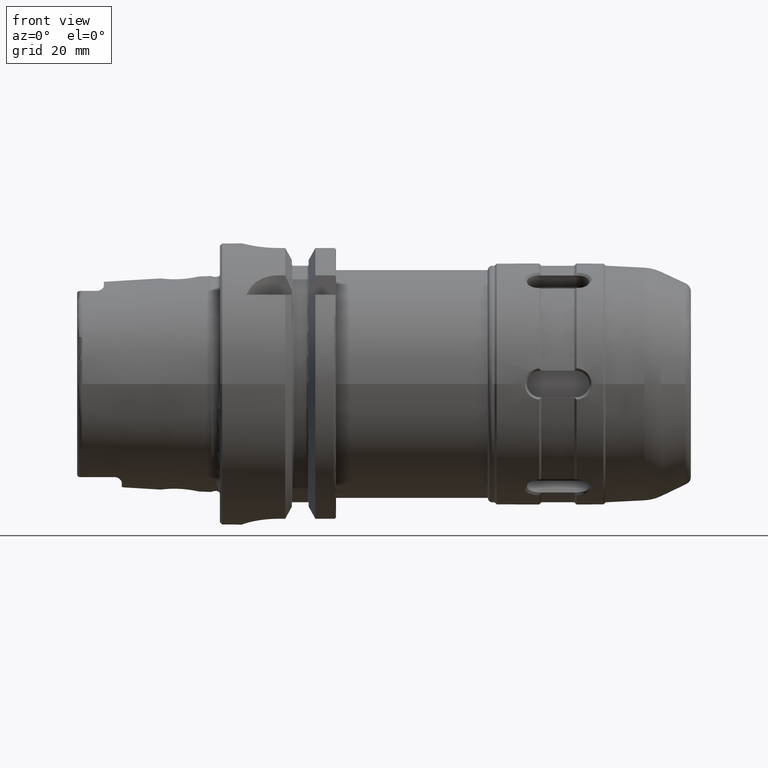
[diagram: clean part render]
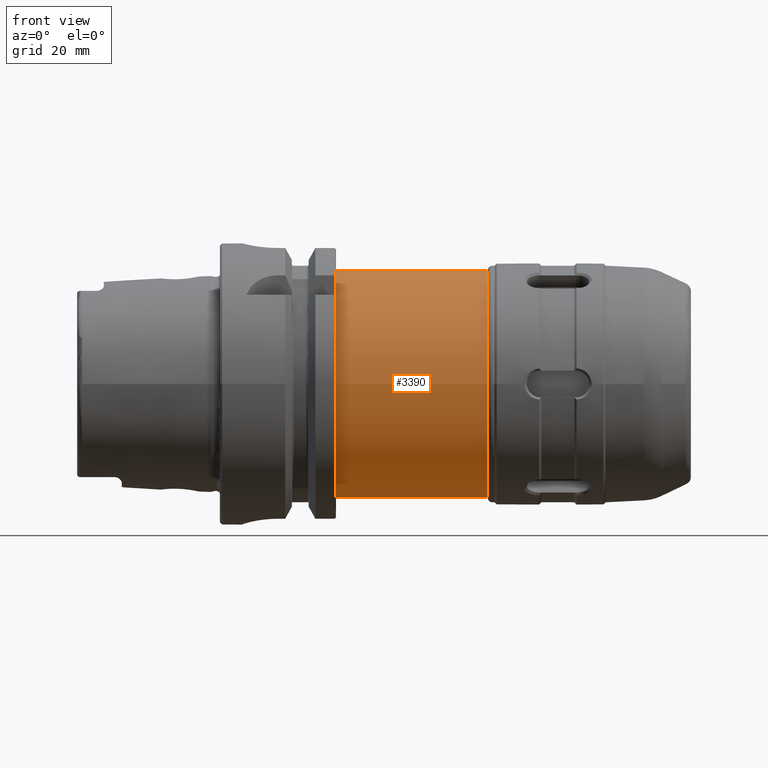
[diagram: same view with one face highlighted and labeled with its STEP entity id]
A machine part, front view. The second image highlights one B-rep face of the part: STEP entity #3390.
In plain terms, the highlighted cylindrical surface (bore or boss wall) has radius 25.5 mm, axis along (1, -0, 0).
Its self-contained STEP definition (entity closure, byte-faithful):
#362=FACE_OUTER_BOUND('',#567,.T.);
#567=EDGE_LOOP('',(#2252,#2253,#2254,#2255));
#790=LINE('',#5058,#971);
#971=VECTOR('',#4086,25.5);
#1154=CIRCLE('',#3674,25.5);
#1155=CIRCLE('',#3675,25.5);
#1349=VERTEX_POINT('',#5055);
#1350=VERTEX_POINT('',#5057);
#1706=EDGE_CURVE('',#1349,#1349,#1154,.T.);
#1707=EDGE_CURVE('',#1349,#1350,#790,.T.);
#1708=EDGE_CURVE('',#1350,#1350,#1155,.T.);
#2252=ORIENTED_EDGE('',*,*,#1706,.F.);
#2253=ORIENTED_EDGE('',*,*,#1707,.T.);
#2254=ORIENTED_EDGE('',*,*,#1708,.F.);
#2255=ORIENTED_EDGE('',*,*,#1707,.F.);
#3328=CYLINDRICAL_SURFACE('',#3673,25.5);
#3390=ADVANCED_FACE('',(#362),#3328,.T.);
#3673=AXIS2_PLACEMENT_3D('',#5054,#4082,#4083);
#3674=AXIS2_PLACEMENT_3D('',#5056,#4084,#4085);
#3675=AXIS2_PLACEMENT_3D('',#5059,#4087,#4088);
#4082=DIRECTION('center_axis',(1.,0.,0.));
#4083=DIRECTION('ref_axis',(0.,1.,0.));
#4084=DIRECTION('center_axis',(1.,0.,0.));
#4085=DIRECTION('ref_axis',(0.,0.,-1.));
#4086=DIRECTION('',(-1.,0.,0.));
#4087=DIRECTION('center_axis',(-1.,0.,0.));
#4088=DIRECTION('ref_axis',(0.,1.,0.));
#5054=CARTESIAN_POINT('Origin',(43.,0.,0.));
#5055=CARTESIAN_POINT('',(60.,-25.5,-3.12284933782575E-15));
#5056=CARTESIAN_POINT('Origin',(60.,0.,0.));
#5057=CARTESIAN_POINT('',(26.,-25.5,-3.12284933782575E-15));
#5058=CARTESIAN_POINT('',(43.,-25.5,-3.12284933782575E-15));
#5059=CARTESIAN_POINT('Origin',(26.,0.,0.));